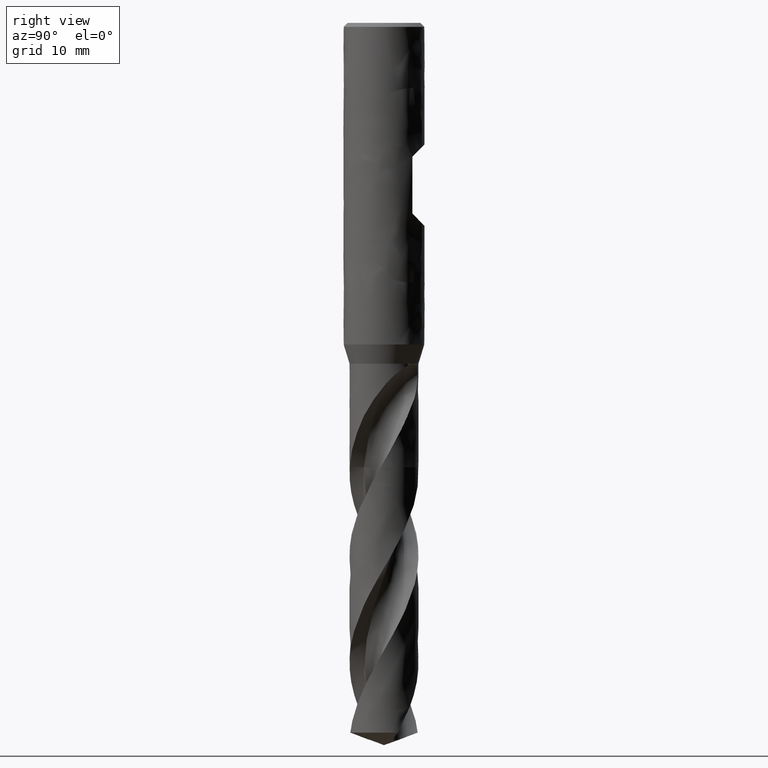
[diagram: clean part render]
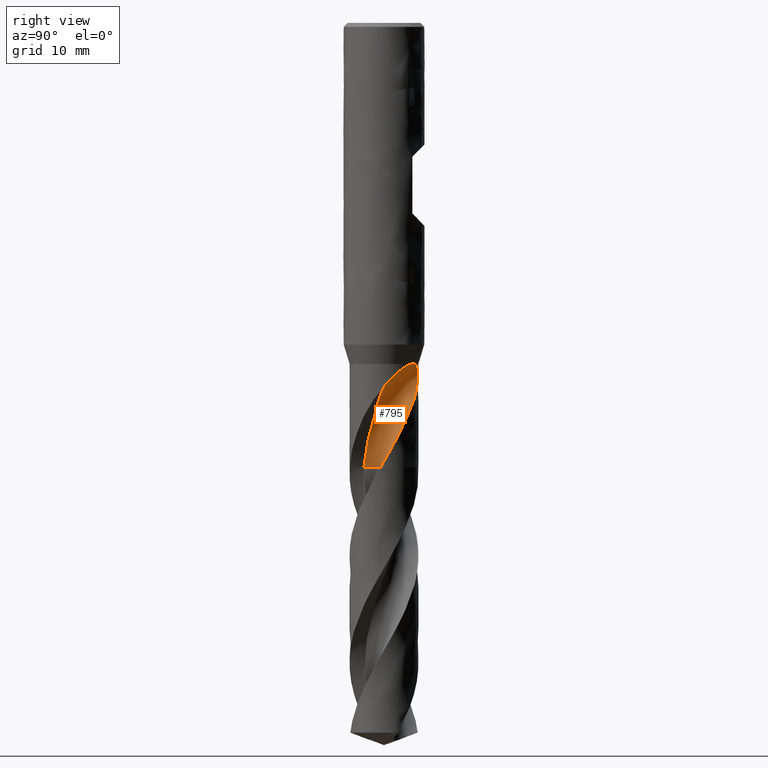
[diagram: same view with one face highlighted and labeled with its STEP entity id]
A machine part, right view. The second image highlights one B-rep face of the part: STEP entity #795.
In plain terms, the highlighted face is a freeform B-spline surface patch.
Its self-contained STEP definition (entity closure, byte-faithful):
#189 = VERTEX_POINT('', #190);
#190 = CARTESIAN_POINT('', (2.47164914475409, 3.45737624583099, -42.));
#197 = EDGE_CURVE('', #198, #189, #200, .T.);
#198 = VERTEX_POINT('', #199);
#199 = CARTESIAN_POINT('', (2.29125301185875, 3.58698681878302, -41.98));
#200 = B_SPLINE_CURVE_WITH_KNOTS('', 3, (#201, #202, #203, #204, #205, #206, #207), .UNSPECIFIED., .F., .U., (4, 3, 4), (0., 0.131760971255534, 0.223285146844681), .UNSPECIFIED.);
#201 = CARTESIAN_POINT('', (2.29125301186076, 3.58698681878174, -41.98));
#202 = CARTESIAN_POINT('', (2.32825456861981, 3.56332514633761, -41.9800699501278));
#203 = CARTESIAN_POINT('', (2.36450692344449, 3.53837278768523, -41.9826907188639));
#204 = CARTESIAN_POINT('', (2.39970857761268, 3.51252907385462, -41.987374823659));
#205 = CARTESIAN_POINT('', (2.42416044941066, 3.49457744083332, -41.9906285096759));
#206 = CARTESIAN_POINT('', (2.44815888947889, 3.47615856436713, -41.9948839416769));
#207 = CARTESIAN_POINT('', (2.47164914475409, 3.45737624583099, -42.));
#209 = EDGE_CURVE('', #210, #198, #212, .T.);
#210 = VERTEX_POINT('', #211);
#211 = CARTESIAN_POINT('', (2.28821245732914, 3.58892721472569, -41.98));
#212 = LINE('', #213, #214);
#213 = CARTESIAN_POINT('', (2.28821245732914, 3.58892721472569, -41.98));
#214 = VECTOR('', #215, 0.00360695276678507);
#215 = DIRECTION('', (0.00304055452960705, -0.00194039594266338, 0.));
#217 = EDGE_CURVE('', #210, #218, #220, .T.);
#218 = VERTEX_POINT('', #219);
#219 = CARTESIAN_POINT('', (2.11454927874783, 3.68662194261183, -42.));
#220 = B_SPLINE_CURVE_WITH_KNOTS('', 3, (#221, #222, #223, #224, #225, #226, #227), .UNSPECIFIED., .F., .U., (4, 3, 4), (0., 0.131525990545027, 0.200578461498623), .UNSPECIFIED.);
#221 = CARTESIAN_POINT('', (2.28821245733029, 3.58892721472495, -41.98));
#222 = CARTESIAN_POINT('', (2.25123311605895, 3.61247809821935, -41.9800699529928));
#223 = CARTESIAN_POINT('', (2.21333676399875, 3.63483940120322, -41.9827053410337));
#224 = CARTESIAN_POINT('', (2.17508989478605, 3.65549811932701, -41.9884075378523));
#225 = CARTESIAN_POINT('', (2.15500990288154, 3.66634415460316, -41.9914012486662));
#226 = CARTESIAN_POINT('', (2.13478967088776, 3.67674624142159, -41.9952458531201));
#227 = CARTESIAN_POINT('', (2.11454927874783, 3.68662194261184, -42.));
#611 = VERTEX_POINT('', #612);
#612 = CARTESIAN_POINT('', (0.609771048206674, -2.47031927261728, -54.75));
#618 = EDGE_CURVE('', #611, #619, #621, .T.);
#619 = VERTEX_POINT('', #620);
#620 = CARTESIAN_POINT('', (4.2450367311532, 0.205336677581351, -44.5069553871322));
#621 = (
   BOUNDED_CURVE ()
   B_SPLINE_CURVE (3, (#622, #623, #624, #625, #626, #627, #628, #629, #630, #631, #632, #633, #634, #635, #636, #637, #638), .UNSPECIFIED., .F., .U.)
   B_SPLINE_CURVE_WITH_KNOTS ((4, 1, 1, 1, 1, 1, 1, 1, 1, 1, 1, 1, 1, 1, 4), (34.3, 34.518, 35.3025, 36.087, 36.8715, 37.656, 38.4405, 39.225, 40.0095, 40.794, 41.5785, 42.363, 43.1475, 43.932, 44.5430446128678), .UNSPECIFIED.)
   CURVE ()
   GEOMETRIC_REPRESENTATION_ITEM ()
   RATIONAL_B_SPLINE_CURVE ((1., 1., 1., 1., 1., 1., 1., 1., 1., 1., 1., 1., 1., 1., 1., 1., 1.))
   REPRESENTATION_ITEM ('')
);
#622 = CARTESIAN_POINT('', (0.609771048206675, -2.47031927261728, -54.75));
#623 = CARTESIAN_POINT('', (0.634055811282545, -2.46496966776102, -54.6773333333333));
#624 = CARTESIAN_POINT('', (0.745422272728016, -2.43874789137037, -54.3431666666667));
#625 = CARTESIAN_POINT('', (0.941033418804973, -2.37880569093326, -53.7475));
#626 = CARTESIAN_POINT('', (1.18921362328058, -2.27247470419927, -52.963));
#627 = CARTESIAN_POINT('', (1.42759755652091, -2.14301329606372, -52.1785));
#628 = CARTESIAN_POINT('', (1.64302122090415, -1.97703407144944, -51.394));
#629 = CARTESIAN_POINT('', (1.82687186775797, -1.77766282427974, -50.6095));
#630 = CARTESIAN_POINT('', (1.97325649335444, -1.54985682579238, -49.825));
#631 = CARTESIAN_POINT('', (2.08060207817125, -1.30776976679265, -49.0405));
#632 = CARTESIAN_POINT('', (2.26720601182499, -1.11601597415201, -48.256));
#633 = CARTESIAN_POINT('', (2.52680930283888, -0.931086368183839, -47.4715));
#634 = CARTESIAN_POINT('', (2.87066064989402, -0.728610734314013, -46.687));
#635 = CARTESIAN_POINT('', (3.29731320745058, -0.477210773874358, -45.9025));
#636 = CARTESIAN_POINT('', (3.7633543896976, -0.171299236364999, -45.1758184623774));
#637 = CARTESIAN_POINT('', (4.09499192189252, 0.0815678368742719, -44.7106369247548));
#638 = CARTESIAN_POINT('', (4.2450367311532, 0.20533667758135, -44.5069553871322));
#795 = ADVANCED_FACE('', (#796), #1034, .T.);
#796 = FACE_OUTER_BOUND('', #797, .T.);
#797 = EDGE_LOOP('', (#798, #807, #858, #869, #978, #979, #980, #981, #1033));
#798 = ORIENTED_EDGE('', *, *, #799, .T.);
#799 = EDGE_CURVE('', #611, #800, #802, .T.);
#800 = VERTEX_POINT('', #801);
#801 = CARTESIAN_POINT('', (4.22936375687884, -0.418308751999922, -54.75));
#802 = CIRCLE('', #803, 2.55009796873264);
#803 = AXIS2_PLACEMENT_3D('', #804, #805, #806);
#804 = CARTESIAN_POINT('', (3.1468918195684, -2.72726048029877, -54.75));
#805 = DIRECTION('', (0., 0., -1.));
#806 = DIRECTION('', (-0.994911026401606, 0.100757379603199, 0.));
#807 = ORIENTED_EDGE('', *, *, #808, .F.);
#808 = EDGE_CURVE('', #809, #800, #811, .T.);
#809 = VERTEX_POINT('', #810);
#810 = CARTESIAN_POINT('', (3.73569701540675, 2.02659019268354, -50.3024607008561));
#811 = B_SPLINE_CURVE_WITH_KNOTS('', 3, (#812, #813, #814, #815, #816, #817, #818, #819, #820, #821, #822, #823, #824, #825, #826, #827, #828, #829, #830, #831, #832, #833, #834, #835, #836, #837, #838, #839, #840, #841, #842, #843, #844, #845, #846, #847, #848, #849, #850, #851, #852, #853, #854, #855, #856, #857), .UNSPECIFIED., .F., .U., (4, 3, 3, 3, 3, 3, 3, 3, 3, 3, 3, 3, 3, 3, 3, 4), (0., 0.295492436937705, 0.590953130722115, 1.03402044030218, 1.47706053005002, 1.9200506415551, 2.21544133681296, 2.51083004733054, 2.80621996671564, 3.10159368342789, 3.76547581857646, 4.06080690653621, 4.25774553308732, 4.31612959440229, 4.98245767447834, 5.11753710972845), .UNSPECIFIED.);
#812 = CARTESIAN_POINT('', (3.73569701540675, 2.02659019268354, -50.3024607008561));
#813 = CARTESIAN_POINT('', (3.7581034291317, 1.98528752913545, -50.389027414858));
#814 = CARTESIAN_POINT('', (3.7799064394322, 1.943462314432, -50.4755047712726));
#815 = CARTESIAN_POINT('', (3.80107061835899, 1.90114758876002, -50.5618951346642));
#816 = CARTESIAN_POINT('', (3.82223252373259, 1.85883740873001, -50.6482762176066));
#817 = CARTESIAN_POINT('', (3.84275747965228, 1.81603457187207, -50.7345759029241));
#818 = CARTESIAN_POINT('', (3.8626161889869, 1.77276512166061, -50.8207910721548));
#819 = CARTESIAN_POINT('', (3.89239593668845, 1.70787906644073, -50.9500777213761));
#820 = CARTESIAN_POINT('', (3.92068094870784, 1.64193528086018, -51.0791913068954));
#821 = CARTESIAN_POINT('', (3.94738053275361, 1.57501966008025, -51.2081157154047));
#822 = CARTESIAN_POINT('', (3.97407847651091, 1.50810815026028, -51.3370322034453));
#823 = CARTESIAN_POINT('', (3.99919765212538, 1.44020787140257, -51.4657763665396));
#824 = CARTESIAN_POINT('', (4.02264666283142, 1.37142765978104, -51.5943408158332));
#825 = CARTESIAN_POINT('', (4.0460930283133, 1.3026552070829, -51.7228907620934));
#826 = CARTESIAN_POINT('', (4.06787116427629, 1.23299717244265, -51.851285408889));
#827 = CARTESIAN_POINT('', (4.08789434515069, 1.16259185567674, -51.9795298418547));
#828 = CARTESIAN_POINT('', (4.10124602313661, 1.11564481345344, -52.0650446450813));
#829 = CARTESIAN_POINT('', (4.11381896006642, 1.06836123978132, -52.1505005526517));
#830 = CARTESIAN_POINT('', (4.12559087784211, 1.02078396767682, -52.2358990232494));
#831 = CARTESIAN_POINT('', (4.13736271652187, 0.973207015245665, -52.3212969200517));
#832 = CARTESIAN_POINT('', (4.14833452748659, 0.925331741506246, -52.4066431950077));
#833 = CARTESIAN_POINT('', (4.15848443459073, 0.877215599078495, -52.4919471198322));
#834 = CARTESIAN_POINT('', (4.16863438323299, 0.829099259737187, -52.5772513937598));
#835 = CARTESIAN_POINT('', (4.17796297744471, 0.780738392011166, -52.6625197677596));
#836 = CARTESIAN_POINT('', (4.18645064507395, 0.732209666939674, -52.7477720114868));
#837 = CARTESIAN_POINT('', (4.19493784713923, 0.683683603756774, -52.8330195789738));
#838 = CARTESIAN_POINT('', (4.20258442160845, 0.634987660601885, -52.9182584352753));
#839 = CARTESIAN_POINT('', (4.20937701281844, 0.586212558681317, -53.0035157476108));
#840 = CARTESIAN_POINT('', (4.22464404471916, 0.476585611620682, -53.1951401317311));
#841 = CARTESIAN_POINT('', (4.23560927237254, 0.366502088617862, -53.3868944278517));
#842 = CARTESIAN_POINT('', (4.2422704647201, 0.256205589640036, -53.5786269634426));
#843 = CARTESIAN_POINT('', (4.24523372744244, 0.207139673694003, -53.6639200830122));
#844 = CARTESIAN_POINT('', (4.24734576336505, 0.158022386874772, -53.7492174901782));
#845 = CARTESIAN_POINT('', (4.24860522517941, 0.108874425730876, -53.8345055488432));
#846 = CARTESIAN_POINT('', (4.24944508488272, 0.0761005920233132, -53.8913790505484));
#847 = CARTESIAN_POINT('', (4.24990578394153, 0.0433131311758714, -53.9482515645899));
#848 = CARTESIAN_POINT('', (4.24998697252181, 0.0105229936287436, -54.0051218118593));
#849 = CARTESIAN_POINT('', (4.25001104153829, 0.000802090042667304, -54.0219814602773));
#850 = CARTESIAN_POINT('', (4.25000175919651, -0.00891910983520778, -54.0388410184666));
#851 = CARTESIAN_POINT('', (4.24995912198796, -0.0186403173604956, -54.0557004549028));
#852 = CARTESIAN_POINT('', (4.24947251025403, -0.129586925055386, -54.2481145429028));
#853 = CARTESIAN_POINT('', (4.24463658847609, -0.240557213558418, -54.4405529575625));
#854 = CARTESIAN_POINT('', (4.23547124014188, -0.351117322172134, -54.6329718406902));
#855 = CARTESIAN_POINT('', (4.23361322137623, -0.373530300822271, -54.671979402943));
#856 = CARTESIAN_POINT('', (4.23157716059796, -0.395929852624131, -54.7109914180556));
#857 = CARTESIAN_POINT('', (4.22936375687884, -0.418308751999922, -54.75));
#858 = ORIENTED_EDGE('', *, *, #859, .T.);
#859 = EDGE_CURVE('', #809, #860, #862, .T.);
#860 = VERTEX_POINT('', #861);
#861 = CARTESIAN_POINT('', (3.07367527400149, 2.93513548409471, -48.3291116133368));
#862 = B_SPLINE_CURVE_WITH_KNOTS('', 3, (#863, #864, #865, #866, #867, #868), .UNSPECIFIED., .F., .U., (4, 1, 1, 4), (38.7475392991439, 39.225, 40.0095, 40.7208883866632), .UNSPECIFIED.);
#863 = CARTESIAN_POINT('', (3.73569701540675, 2.02659019268354, -50.3024607008561));
#864 = CARTESIAN_POINT('', (3.68110323378241, 2.10052779351626, -50.1433071339041));
#865 = CARTESIAN_POINT('', (3.52738023772015, 2.28822305870644, -49.722653566952));
#866 = CARTESIAN_POINT('', (3.25686837372841, 2.54548406870072, -49.0648705377789));
#867 = CARTESIAN_POINT('', (3.12725361087793, 2.79930395611281, -48.5662410755579));
#868 = CARTESIAN_POINT('', (3.07367527400148, 2.93513548409471, -48.3291116133368));
#869 = ORIENTED_EDGE('', *, *, #870, .T.);
#870 = EDGE_CURVE('', #860, #218, #871, .T.);
#871 = B_SPLINE_CURVE_WITH_KNOTS('', 3, (#872, #873, #874, #875, #876, #877, #878, #879, #880, #881, #882, #883, #884, #885, #886, #887, #888, #889, #890, #891, #892, #893, #894, #895, #896, #897, #898, #899, #900, #901, #902, #903, #904, #905, #906, #907, #908, #909, #910, #911, #912, #913, #914, #915, #916, #917, #918, #919, #920, #921, #922, #923, #924, #925, #926, #927, #928, #929, #930, #931, #932, #933, #934, #935, #936, #937, #938, #939, #940, #941, #942, #943, #944, #945, #946, #947, #948, #949, #950, #951, #952, #953, #954, #955, #956, #957, #958, #959, #960, #961, #962, #963, #964, #965, #966, #967, #968, #969, #970, #971, #972, #973, #974, #975, #976, #977), .UNSPECIFIED., .F., .U., (4, 3, 3, 3, 3, 3, 3, 3, 3, 3, 3, 3, 3, 3, 3, 3, 3, 3, 3, 3, 3, 3, 3, 3, 3, 3, 3, 3, 3, 3, 3, 3, 3, 3, 3, 4), (0., 0.197042957082622, 0.492563689580851, 0.787971686752015, 1.08324662707107, 1.37837697109211, 1.6733641521783, 1.96820908268526, 2.26290951648392, 2.55746285844162, 2.85188285641208, 3.14618388286756, 3.44038345697115, 3.73451569977214, 4.02861882855966, 4.32274067123198, 4.61695911621782, 4.91137574324848, 5.10802988565835, 5.30482646016912, 5.50181842633779, 5.69907506320903, 5.83065570236717, 5.88910171996631, 6.08729626761203, 6.219403730231, 6.35172603594261, 6.48427030079518, 6.61701991109814, 6.74992520323784, 6.88290247674807, 7.01584728348699, 7.14865892780782, 7.28126341183041, 7.41362329843195, 7.53443049290436), .UNSPECIFIED.);
#872 = CARTESIAN_POINT('', (3.07367527400148, 2.93513548409471, -48.3291116133368));
#873 = CARTESIAN_POINT('', (3.04882573325226, 2.96115793497818, -48.2741632352322));
#874 = CARTESIAN_POINT('', (3.02348165894011, 2.98703600245974, -48.2193676744849));
#875 = CARTESIAN_POINT('', (2.99767414622485, 3.01271467501592, -48.1646998599596));
#876 = CARTESIAN_POINT('', (2.95896860112701, 3.05122698845121, -48.082710263215));
#877 = CARTESIAN_POINT('', (2.91921503612305, 3.08929446230427, -48.0009988414424));
#878 = CARTESIAN_POINT('', (2.87853985421837, 3.126740844342, -47.9194702603734));
#879 = CARTESIAN_POINT('', (2.83788018909283, 3.16417294132402, -47.8379727808491));
#880 = CARTESIAN_POINT('', (2.79629436571116, 3.20098909096383, -47.7566471621373));
#881 = CARTESIAN_POINT('', (2.75393285488028, 3.23702854958231, -47.6753891210335));
#882 = CARTESIAN_POINT('', (2.71159042440382, 3.27305177540763, -47.5941676799516));
#883 = CARTESIAN_POINT('', (2.66846758106626, 3.30830348737016, -47.5130036059692));
#884 = CARTESIAN_POINT('', (2.62473914215167, 3.34264033896214, -47.4317861142462));
#885 = CARTESIAN_POINT('', (2.58103211707727, 3.37696037577933, -47.3506083947728));
#886 = CARTESIAN_POINT('', (2.53671656130484, 3.41036920290932, -47.2693654057589));
#887 = CARTESIAN_POINT('', (2.4919868925434, 3.44274618980179, -47.1879468663521));
#888 = CARTESIAN_POINT('', (2.44727892141754, 3.47510747114396, -47.1065678217559));
#889 = CARTESIAN_POINT('', (2.4021513552509, 3.50644236202964, -47.0250027956547));
#890 = CARTESIAN_POINT('', (2.35680713107705, 3.5366594615407, -46.9431527355271));
#891 = CARTESIAN_POINT('', (2.31148477308102, 3.56686198957142, -46.8613421456517));
#892 = CARTESIAN_POINT('', (2.26593939050238, 3.59595231873469, -46.7792352429597));
#893 = CARTESIAN_POINT('', (2.22038392784329, 3.62386467917546, -46.6967435378855));
#894 = CARTESIAN_POINT('', (2.17485079086702, 3.65176336041137, -46.6142922600956));
#895 = CARTESIAN_POINT('', (2.12930001582565, 3.67848974299635, -46.5314434173807));
#896 = CARTESIAN_POINT('', (2.08396927473327, 3.70399406883538, -46.4481099339404));
#897 = CARTESIAN_POINT('', (2.03866115926812, 3.72948566487217, -46.3648180441799));
#898 = CARTESIAN_POINT('', (1.99356430737269, 3.75376135669669, -46.2810267423143));
#899 = CARTESIAN_POINT('', (1.94892776108221, 3.77679501457029, -46.1966631539861));
#900 = CARTESIAN_POINT('', (1.90431142170916, 3.79981824513127, -46.1123377569654));
#901 = CARTESIAN_POINT('', (1.86014494990215, 3.82160579913878, -46.0274224214596));
#902 = CARTESIAN_POINT('', (1.81669366332529, 3.8421509774648, -45.9418575875056));
#903 = CARTESIAN_POINT('', (1.77325993488112, 3.86268785373591, -45.8563273292529));
#904 = CARTESIAN_POINT('', (1.73052914395327, 3.88198884493724, -45.7701258958773));
#905 = CARTESIAN_POINT('', (1.68879309413132, 3.90006126685396, -45.6832054331448));
#906 = CARTESIAN_POINT('', (1.64707143168839, 3.91812745878999, -45.5963149339006));
#907 = CARTESIAN_POINT('', (1.6063303073417, 3.93497190254064, -45.5086784572248));
#908 = CARTESIAN_POINT('', (1.56688235248435, 3.95061763443049, -45.4202696726038));
#909 = CARTESIAN_POINT('', (1.52744342579161, 3.96625978559622, -45.331881121454));
#910 = CARTESIAN_POINT('', (1.48928091962619, 3.98071027045216, -45.2426861928205));
#911 = CARTESIAN_POINT('', (1.45273970739912, 3.99400141994791, -45.1526821542434));
#912 = CARTESIAN_POINT('', (1.41620211212112, 4.00729125384935, -45.0626870245121));
#913 = CARTESIAN_POINT('', (1.38126684975213, 4.01942881968566, -44.9718385025998));
#914 = CARTESIAN_POINT('', (1.34833134275765, 4.03044694669678, -44.8801619396987));
#915 = CARTESIAN_POINT('', (1.31539374006537, 4.04146577479516, -44.7884795433858));
#916 = CARTESIAN_POINT('', (1.284434248696, 4.0513726414485, -44.6959109465117));
#917 = CARTESIAN_POINT('', (1.25590779374951, 4.06019649938267, -44.6025281700655));
#918 = CARTESIAN_POINT('', (1.22737196948342, 4.0690232554528, -44.5091147226833));
#919 = CARTESIAN_POINT('', (1.20124523532693, 4.07677465524821, -44.4148084866538));
#920 = CARTESIAN_POINT('', (1.17807177881433, 4.08346016069231, -44.3197476010525));
#921 = CARTESIAN_POINT('', (1.15488271293708, 4.09015016941335, -44.2246226835693));
#922 = CARTESIAN_POINT('', (1.13462437923115, 4.09578144955364, -44.1286334287464));
#923 = CARTESIAN_POINT('', (1.11796506414341, 4.10032365982917, -44.0320255902148));
#924 = CARTESIAN_POINT('', (1.10683755631631, 4.10335760691085, -43.9674968581656));
#925 = CARTESIAN_POINT('', (1.097308510454, 4.10590761598542, -43.902641384734));
#926 = CARTESIAN_POINT('', (1.08961720625945, 4.10794770461156, -43.8375747619278));
#927 = CARTESIAN_POINT('', (1.08192033142905, 4.10998927082726, -43.7724610128538));
#928 = CARTESIAN_POINT('', (1.07605681999711, 4.11152243396659, -43.7070780809983));
#929 = CARTESIAN_POINT('', (1.07230853057959, 4.11249977692963, -43.6415936910996));
#930 = CARTESIAN_POINT('', (1.06855651963142, 4.11347809025845, -43.5760442842992));
#931 = CARTESIAN_POINT('', (1.06692009056069, 4.11390109513901, -43.510317197102));
#932 = CARTESIAN_POINT('', (1.06773004845378, 4.1136908663181, -43.4446585404979));
#933 = CARTESIAN_POINT('', (1.06854109457462, 4.11348035504196, -43.3789116674903));
#934 = CARTESIAN_POINT('', (1.07180716820777, 4.11263530023188, -43.3131317796551));
#935 = CARTESIAN_POINT('', (1.07790336606995, 4.1110368927334, -43.2476822961875));
#936 = CARTESIAN_POINT('', (1.08196985338244, 4.10997067015341, -43.2040240193161));
#937 = CARTESIAN_POINT('', (1.08730065140208, 4.108567337971, -43.1604675559263));
#938 = CARTESIAN_POINT('', (1.09401468200477, 4.10677877119787, -43.1171611925256));
#939 = CARTESIAN_POINT('', (1.09699694712581, 4.10598431841387, -43.0979251978256));
#940 = CARTESIAN_POINT('', (1.10025308888062, 4.10511346766938, -43.0787324581172));
#941 = CARTESIAN_POINT('', (1.103793616168, 4.10416126058745, -43.0595985478849));
#942 = CARTESIAN_POINT('', (1.11579979268736, 4.10093225954309, -42.9947141153955));
#943 = CARTESIAN_POINT('', (1.13110902238569, 4.09676479905349, -42.9303610757873));
#944 = CARTESIAN_POINT('', (1.15010691755606, 4.09142445588205, -42.8673124832912));
#945 = CARTESIAN_POINT('', (1.16277004959411, 4.08786482624403, -42.8252871618316));
#946 = CARTESIAN_POINT('', (1.1770969635404, 4.08377560821206, -42.7837600484506));
#947 = CARTESIAN_POINT('', (1.19317094379929, 4.07907380404831, -42.7430332303058));
#948 = CARTESIAN_POINT('', (1.20927106477395, 4.07436435345696, -42.7022401791459));
#949 = CARTESIAN_POINT('', (1.22716012742764, 4.06902973927407, -42.6621647738929));
#950 = CARTESIAN_POINT('', (1.24686842361695, 4.06298155720488, -42.6231715898965));
#951 = CARTESIAN_POINT('', (1.26660977875629, 4.05692322983714, -42.5841129982307));
#952 = CARTESIAN_POINT('', (1.28822962918686, 4.05013232661126, -42.5460419962005));
#953 = CARTESIAN_POINT('', (1.31167276836227, 4.04252576352172, -42.5093737887217));
#954 = CARTESIAN_POINT('', (1.3351522270418, 4.03490741589269, -42.4726487726771));
#955 = CARTESIAN_POINT('', (1.36053377710715, 4.02644640501465, -42.4372228184105));
#956 = CARTESIAN_POINT('', (1.38764641037961, 4.01708071113347, -42.403529497127));
#957 = CARTESIAN_POINT('', (1.41479083993785, 4.00770403365376, -42.3697966620692));
#958 = CARTESIAN_POINT('', (1.44376390506622, 3.99738707588608, -42.3376887082393));
#959 = CARTESIAN_POINT('', (1.47426605676279, 3.98610581819865, -42.3076055191712));
#960 = CARTESIAN_POINT('', (1.50478472839357, 3.97481845059357, -42.2775060370786));
#961 = CARTESIAN_POINT('', (1.53694445790691, 3.96252356625059, -42.2493260293391));
#962 = CARTESIAN_POINT('', (1.57033592096082, 3.9492461426632, -42.2233742851626));
#963 = CARTESIAN_POINT('', (1.60371923139612, 3.93597196079572, -42.1974288771767));
#964 = CARTESIAN_POINT('', (1.63845375958337, 3.92166683129031, -42.1736155947532));
#965 = CARTESIAN_POINT('', (1.67406973040893, 3.90640378580205, -42.1521131395445));
#966 = CARTESIAN_POINT('', (1.70965002696549, 3.89115602834267, -42.1306322219873));
#967 = CARTESIAN_POINT('', (1.74623106149563, 3.87489983250716, -42.1113808093846));
#968 = CARTESIAN_POINT('', (1.7833430995543, 3.85774382110478, -42.0944029021642));
#969 = CARTESIAN_POINT('', (1.82039725006167, 3.84061456973882, -42.0774514771725));
#970 = CARTESIAN_POINT('', (1.85809461658861, 3.82253574413472, -42.0627103662113));
#971 = CARTESIAN_POINT('', (1.8960135813795, 3.80363411742304, -42.0501146229512));
#972 = CARTESIAN_POINT('', (1.93386260222342, 3.78476735596633, -42.0375421133423));
#973 = CARTESIAN_POINT('', (1.97203345348336, 3.76503097812546, -42.0270700939761));
#974 = CARTESIAN_POINT('', (2.01017691597104, 3.74455454847398, -42.0185634399479));
#975 = CARTESIAN_POINT('', (2.04499112448174, 3.7258653512971, -42.0107992673283));
#976 = CARTESIAN_POINT('', (2.07985237737555, 3.70652317168105, -42.0046544278388));
#977 = CARTESIAN_POINT('', (2.11454927874784, 3.68662194261183, -42.));
#978 = ORIENTED_EDGE('', *, *, #217, .F.);
#979 = ORIENTED_EDGE('', *, *, #209, .T.);
#980 = ORIENTED_EDGE('', *, *, #197, .T.);
#981 = ORIENTED_EDGE('', *, *, #982, .F.);
#982 = EDGE_CURVE('', #619, #189, #983, .T.);
#983 = B_SPLINE_CURVE_WITH_KNOTS('', 3, (#984, #985, #986, #987, #988, #989, #990, #991, #992, #993, #994, #995, #996, #997, #998, #999, #1000, #1001, #1002, #1003, #1004, #1005, #1006, #1007, #1008, #1009, #1010, #1011, #1012, #1013, #1014, #1015, #1016, #1017, #1018, #1019, #1020, #1021, #1022, #1023, #1024, #1025, #1026, #1027, #1028, #1029, #1030, #1031, #1032), .UNSPECIFIED., .F., .U., (4, 3, 3, 3, 3, 3, 3, 3, 3, 3, 3, 3, 3, 3, 3, 3, 4), (0., 0.449594198690998, 0.899657769809117, 1.35011366645393, 1.64893718823411, 1.94782236260052, 2.24675282565272, 2.54570911171477, 2.84466700085257, 3.14359493874636, 3.4424500201081, 3.7411717138569, 3.93948997209439, 4.13770480685612, 4.33577993709333, 4.53366753375009, 4.67396720773657), .UNSPECIFIED.);
#984 = CARTESIAN_POINT('', (4.2450367311532, 0.205336677581354, -44.5069553871322));
#985 = CARTESIAN_POINT('', (4.24036487170032, 0.30192056709333, -44.3924601287925));
#986 = CARTESIAN_POINT('', (4.23226263891475, 0.401038800265989, -44.2801320567184));
#987 = CARTESIAN_POINT('', (4.2202241563504, 0.502203215995859, -44.1702217565011));
#988 = CARTESIAN_POINT('', (4.20817310571511, 0.60347324649453, -44.0601967108877));
#989 = CARTESIAN_POINT('', (4.19216351681398, 0.706904053139245, -43.9524640857336));
#990 = CARTESIAN_POINT('', (4.17172261561068, 0.811930057580308, -43.8473067488046));
#991 = CARTESIAN_POINT('', (4.15126389584164, 0.917047614382311, -43.7420577450307));
#992 = CARTESIAN_POINT('', (4.12633926097565, 1.02389860862381, -43.6392520529361));
#993 = CARTESIAN_POINT('', (4.09651151129616, 1.13185398255167, -43.5392442765027));
#994 = CARTESIAN_POINT('', (4.07672437281624, 1.20346943985283, -43.4729010979988));
#995 = CARTESIAN_POINT('', (4.05476529960035, 1.27562566269758, -43.4077367381418));
#996 = CARTESIAN_POINT('', (4.03051953394977, 1.34811434472421, -43.3438676866869));
#997 = CARTESIAN_POINT('', (4.00626876596822, 1.42061798245009, -43.2799854579154));
#998 = CARTESIAN_POINT('', (3.9797130749996, 1.49350574198385, -43.2173535101226));
#999 = CARTESIAN_POINT('', (3.95074660973885, 1.56655712492072, -43.1561141786001));
#1000 = CARTESIAN_POINT('', (3.9217757553238, 1.63961957699522, -43.0948655677655));
#1001 = CARTESIAN_POINT('', (3.89037047895655, 1.71290325329589, -43.0349614850076));
#1002 = CARTESIAN_POINT('', (3.85643461750724, 1.78617245552937, -42.9765765044937));
#1003 = CARTESIAN_POINT('', (3.82249582451968, 1.85944798709882, -42.9181864804124));
#1004 = CARTESIAN_POINT('', (3.7859958909345, 1.93277371879519, -42.8612638715813));
#1005 = CARTESIAN_POINT('', (3.74685000058293, 2.00589508029001, -42.8060243398112));
#1006 = CARTESIAN_POINT('', (3.70770390032166, 2.07901683387922, -42.7507845118335));
#1007 = CARTESIAN_POINT('', (3.66587233898431, 2.15200745082844, -42.6971718256628));
#1008 = CARTESIAN_POINT('', (3.62128498920214, 2.22458873209842, -42.6454555568758));
#1009 = CARTESIAN_POINT('', (3.57670210642567, 2.29716274177682, -42.5937444693088));
#1010 = CARTESIAN_POINT('', (3.52931208639919, 2.36941124173244, -42.5438687998286));
#1011 = CARTESIAN_POINT('', (3.47906490885354, 2.44102588269439, -42.496169520553));
#1012 = CARTESIAN_POINT('', (3.4288299778551, 2.51262306930121, -42.4484818668353));
#1013 = CARTESIAN_POINT('', (3.37567040416641, 2.58368372089945, -42.4029034951717));
#1014 = CARTESIAN_POINT('', (3.31956737759217, 2.65385991070098, -42.3598736156264));
#1015 = CARTESIAN_POINT('', (3.26348939141129, 2.7240047788519, -42.3168629415533));
#1016 = CARTESIAN_POINT('', (3.20437763607123, 2.79338034127836, -42.2763262314415));
#1017 = CARTESIAN_POINT('', (3.14226549667044, 2.86158479665281, -42.2388402933798));
#1018 = CARTESIAN_POINT('', (3.10102988653853, 2.90686503266162, -42.2139537648806));
#1019 = CARTESIAN_POINT('', (3.05842899792983, 2.95167692896456, -42.190387310539));
#1020 = CARTESIAN_POINT('', (3.0144939679654, 2.99588486379237, -42.1683558272256));
#1021 = CARTESIAN_POINT('', (2.97058185023078, 3.04006974406979, -42.1463358333867));
#1022 = CARTESIAN_POINT('', (2.92529067318053, 3.08369727061793, -42.1258258275544));
#1023 = CARTESIAN_POINT('', (2.87867903497805, 3.12661270604113, -42.1070887401539));
#1024 = CARTESIAN_POINT('', (2.83210024929522, 3.16949789407892, -42.0883648589087));
#1025 = CARTESIAN_POINT('', (2.7841436009685, 3.21172562276278, -42.0713874926871));
#1026 = CARTESIAN_POINT('', (2.73491053342517, 3.25311610216421, -42.0564797888799));
#1027 = CARTESIAN_POINT('', (2.68572407876768, 3.29446739388575, -42.0415861993892));
#1028 = CARTESIAN_POINT('', (2.63518630250123, 3.33504659550177, -42.0287351304238));
#1029 = CARTESIAN_POINT('', (2.58346649774961, 3.37464084829859, -42.0183229933402));
#1030 = CARTESIAN_POINT('', (2.5467978440902, 3.40271264690033, -42.0109409266366));
#1031 = CARTESIAN_POINT('', (2.50949470652994, 3.43032077262097, -42.0047776322586));
#1032 = CARTESIAN_POINT('', (2.47164914475409, 3.45737624583099, -42.));
#1033 = ORIENTED_EDGE('', *, *, #618, .F.);
#1034 = (
   BOUNDED_SURFACE ()
   B_SPLINE_SURFACE (3, 2, ((#1035, #1036, #1037, #1038, #1039), (#1040, #1041, #1042, #1043, #1044), (#1045, #1046, #1047, #1048, #1049), (#1050, #1051, #1052, #1053, #1054), (#1055, #1056, #1057, #1058, #1059), (#1060, #1061, #1062, #1063, #1064), (#1065, #1066, #1067, #1068, #1069), (#1070, #1071, #1072, #1073, #1074), (#1075, #1076, #1077, #1078, #1079), (#1080, #1081, #1082, #1083, #1084), (#1085, #1086, #1087, #1088, #1089), (#1090, #1091, #1092, #1093, #1094), (#1095, #1096, #1097, #1098, #1099), (#1100, #1101, #1102, #1103, #1104), (#1105, #1106, #1107, #1108, #1109), (#1110, #1111, #1112, #1113, #1114), (#1115, #1116, #1117, #1118, #1119), (#1120, #1121, #1122, #1123, #1124), (#1125, #1126, #1127, #1128, #1129)), .UNSPECIFIED., .F., .F., .U.)
   B_SPLINE_SURFACE_WITH_KNOTS ((4, 1, 1, 1, 1, 1, 1, 1, 1, 1, 1, 1, 1, 1, 1, 1, 4), (3, 2, 3), (34.3, 34.518, 35.3025, 36.087, 36.8715, 37.656, 38.4405, 39.225, 40.0095, 40.794, 41.5785, 42.363, 43.1475, 43.932, 44.7165, 45.501, 47.07), (0., 0.5, 1.), .UNSPECIFIED.)
   GEOMETRIC_REPRESENTATION_ITEM ()
   RATIONAL_B_SPLINE_SURFACE (((1., 0.887010833178222, 1., 0.887010833178222, 1.), (1., 0.887010833178222, 1., 0.887010833178222, 1.), (1., 0.887010833178222, 1., 0.887010833178222, 1.), (1., 0.887010833178222, 1., 0.887010833178222, 1.), (1., 0.887010833178222, 1., 0.887010833178222, 1.), (1., 0.887010833178222, 1., 0.887010833178222, 1.), (1., 0.887010833178222, 1., 0.887010833178222, 1.), (1., 0.887010833178222, 1., 0.887010833178222, 1.), (1., 0.887010833178221, 1., 0.887010833178221, 1.), (1., 0.887010833178222, 1., 0.887010833178222, 1.), (1., 0.887010833178222, 1., 0.887010833178222, 1.), (1., 0.887010833178221, 1., 0.887010833178221, 1.), (1., 0.887010833178222, 1., 0.887010833178222, 1.), (1., 0.887010833178222, 1., 0.887010833178222, 1.), (1., 0.887010833178222, 1., 0.887010833178222, 1.), (1., 0.887010833178222, 1., 0.887010833178222, 1.), (1., 0.887010833178221, 1., 0.887010833178221, 1.), (1., 0.887010833178222, 1., 0.887010833178222, 1.), (1., 0.887010833178222, 1., 0.887010833178222, 1.)))
   REPRESENTATION_ITEM ('')
   SURFACE ()
);
#1035 = CARTESIAN_POINT('', (4.2560848317074, -0.431025633400303, -54.75));
#1036 = CARTESIAN_POINT('', (3.06074054072663, 0.146383436041599, -54.75));
#1037 = CARTESIAN_POINT('', (1.90213340246898, -0.501597047177214, -54.75));
#1038 = CARTESIAN_POINT('', (0.743526264211322, -1.14957753039603, -54.75));
#1039 = CARTESIAN_POINT('', (0.609771048206672, -2.47031927261728, -54.75));
#1040 = CARTESIAN_POINT('', (4.26134305502157, -0.389550218710324, -54.6773333333333));
#1041 = CARTESIAN_POINT('', (3.06006344508432, 0.176322537220664, -54.6773333333334));
#1042 = CARTESIAN_POINT('', (1.90750194252703, -0.483136832247072, -54.6773333333333));
#1043 = CARTESIAN_POINT('', (0.754940439969737, -1.14259620171481, -54.6773333333334));
#1044 = CARTESIAN_POINT('', (0.634055811282544, -2.46496966776102, -54.6773333333333));
#1045 = CARTESIAN_POINT('', (4.28278184650584, -0.198394923127536, -54.3431666666667));
#1046 = CARTESIAN_POINT('', (3.05496230020998, 0.314011597871095, -54.3431666666667));
#1047 = CARTESIAN_POINT('', (1.93097509118041, -0.397854987217703, -54.3431666666667));
#1048 = CARTESIAN_POINT('', (0.806987882150842, -1.1097215723065, -54.3431666666667));
#1049 = CARTESIAN_POINT('', (0.745422272728015, -2.43874789137037, -54.3431666666667));
#1050 = CARTESIAN_POINT('', (4.29845415976369, 0.14521156659534, -53.7475));
#1051 = CARTESIAN_POINT('', (3.02959577195145, 0.559084451808721, -53.7475));
#1052 = CARTESIAN_POINT('', (1.96278367963764, -0.242915755877894, -53.7475));
#1053 = CARTESIAN_POINT('', (0.895971587323841, -1.04491596356451, -53.7475));
#1054 = CARTESIAN_POINT('', (0.941033418804973, -2.37880569093326, -53.7475));
#1055 = CARTESIAN_POINT('', (4.27039491948669, 0.598277334031764, -52.963));
#1056 = CARTESIAN_POINT('', (2.96163250628471, 0.877056366816054, -52.963));
#1057 = CARTESIAN_POINT('', (1.98259481067996, -0.0351179552931392, -52.963));
#1058 = CARTESIAN_POINT('', (1.00355711507521, -0.947292277402333, -52.963));
#1059 = CARTESIAN_POINT('', (1.18921362328058, -2.27247470419927, -52.963));
#1060 = CARTESIAN_POINT('', (4.20017422749547, 1.04890814322726, -52.1785));
#1061 = CARTESIAN_POINT('', (2.86406067065945, 1.18882855431859, -52.1785));
#1062 = CARTESIAN_POINT('', (1.9830813273859, 0.17460345360067, -52.1785));
#1063 = CARTESIAN_POINT('', (1.10210198411234, -0.839621647117254, -52.1785));
#1064 = CARTESIAN_POINT('', (1.42759755652091, -2.14301329606372, -52.1785));
#1065 = CARTESIAN_POINT('', (4.05915340389436, 1.48382889137852, -51.394));
#1066 = CARTESIAN_POINT('', (2.71800169344273, 1.4819574131925, -51.394));
#1067 = CARTESIAN_POINT('', (1.95028169993769, 0.382276812085722, -51.394));
#1068 = CARTESIAN_POINT('', (1.18256170643265, -0.717403789021056, -51.394));
#1069 = CARTESIAN_POINT('', (1.64302122090415, -1.97703407144944, -51.394));
#1070 = CARTESIAN_POINT('', (3.84741276232325, 1.88763555373321, -50.6095));
#1071 = CARTESIAN_POINT('', (2.52514737725733, 1.74553931768754, -50.6095));
#1072 = CARTESIAN_POINT('', (1.88312553202346, 0.580899871728252, -50.6095));
#1073 = CARTESIAN_POINT('', (1.24110368678959, -0.583739574231039, -50.6095));
#1074 = CARTESIAN_POINT('', (1.82687186775797, -1.77766282427974, -50.6095));
#1075 = CARTESIAN_POINT('', (3.56946998942979, 2.24819504708636, -49.825));
#1076 = CARTESIAN_POINT('', (2.28998578017963, 1.97145872536372, -49.825));
#1077 = CARTESIAN_POINT('', (1.7827929107386, 0.764637186498407, -49.825));
#1078 = CARTESIAN_POINT('', (1.27560004129757, -0.442184352366911, -49.825));
#1079 = CARTESIAN_POINT('', (1.97325649335444, -1.54985682579238, -49.825));
#1080 = CARTESIAN_POINT('', (3.24684604218643, 2.55501546261794, -49.0405));
#1081 = CARTESIAN_POINT('', (2.02887582301951, 2.15456734014399, -49.0405));
#1082 = CARTESIAN_POINT('', (1.65830470328428, 0.927176938198229, -49.0405));
#1083 = CARTESIAN_POINT('', (1.28773358354904, -0.300213463747538, -49.0405));
#1084 = CARTESIAN_POINT('', (2.08060207817125, -1.30776976679265, -49.0405));
#1085 = CARTESIAN_POINT('', (3.04872294589514, 2.95887528375473, -48.256));
#1086 = CARTESIAN_POINT('', (1.84566247971867, 2.41963220256908, -48.256));
#1087 = CARTESIAN_POINT('', (1.59733741713626, 1.12484563746393, -48.256));
#1088 = CARTESIAN_POINT('', (1.34901235455386, -0.169940927641215, -48.256));
#1089 = CARTESIAN_POINT('', (2.26720601182499, -1.11601597415201, -48.256));
#1090 = CARTESIAN_POINT('', (2.90267243014638, 3.47446062524877, -47.4715));
#1091 = CARTESIAN_POINT('', (1.68747913840305, 2.76936971123221, -47.4715));
#1092 = CARTESIAN_POINT('', (1.56804956427347, 1.36951810832927, -47.4715));
#1093 = CARTESIAN_POINT('', (1.44861999014389, -0.0303334945736627, -47.4715));
#1094 = CARTESIAN_POINT('', (2.52680930283888, -0.931086368183839, -47.4715));
#1095 = CARTESIAN_POINT('', (2.77646702632258, 4.13335889411701, -46.687));
#1096 = CARTESIAN_POINT('', (1.52814345375584, 3.22273579179233, -46.687));
#1097 = CARTESIAN_POINT('', (1.55807324343605, 1.67785703149982, -46.687));
#1098 = CARTESIAN_POINT('', (1.58800303311626, 0.132978271207305, -46.687));
#1099 = CARTESIAN_POINT('', (2.87066064989402, -0.728610734314013, -46.687));
#1100 = CARTESIAN_POINT('', (2.61960607289986, 4.95101780816588, -45.9025));
#1101 = CARTESIAN_POINT('', (1.33024141193348, 3.78531364987625, -45.9025));
#1102 = CARTESIAN_POINT('', (1.54558116883854, 2.06050751506029, -45.9025));
#1103 = CARTESIAN_POINT('', (1.76092092574359, 0.335701380244329, -45.9025));
#1104 = CARTESIAN_POINT('', (3.29731320745058, -0.477210773874358, -45.9025));
#1105 = CARTESIAN_POINT('', (2.38112498787185, 5.93432983577315, -45.118));
#1106 = CARTESIAN_POINT('', (1.05693837250632, 4.45657674817284, -45.118));
#1107 = CARTESIAN_POINT('', (1.50792059526338, 2.52426222538351, -45.118));
#1108 = CARTESIAN_POINT('', (1.95890281802043, 0.591947702594177, -45.118));
#1109 = CARTESIAN_POINT('', (3.80043498575929, -0.146959365587264, -45.118));
#1110 = CARTESIAN_POINT('', (2.00710272200206, 7.07876111537608, -44.3335));
#1111 = CARTESIAN_POINT('', (0.670518080872238, 5.22759039755199, -44.3335));
#1112 = CARTESIAN_POINT('', (1.42027490336498, 3.07093645299827, -44.3335));
#1113 = CARTESIAN_POINT('', (2.17003172585773, 0.914282508444556, -44.3335));
#1114 = CARTESIAN_POINT('', (4.36670205973809, 0.291441458349561, -44.3335));
#1115 = CARTESIAN_POINT('', (1.25617701287829, 8.79821704742872, -43.2875));
#1116 = CARTESIAN_POINT('', (-0.0439294487807067, 6.36594651268827, -43.2875));
#1117 = CARTESIAN_POINT('', (1.20275950086047, 3.90586858126891, -43.2875));
#1118 = CARTESIAN_POINT('', (2.44944845050164, 1.44579064984955, -43.2875));
#1119 = CARTESIAN_POINT('', (5.17969772210747, 1.05597571849124, -43.2875));
#1120 = CARTESIAN_POINT('', (0.330942951019987, 10.2656021039899, -42.503));
#1121 = CARTESIAN_POINT('', (-0.855102737253551, 7.30723637609713, -42.503));
#1122 = CARTESIAN_POINT('', (0.887960737274856, 4.63883575429991, -42.503));
#1123 = CARTESIAN_POINT('', (2.63102421180326, 1.97043513250268, -42.503));
#1124 = CARTESIAN_POINT('', (5.81663017218415, 1.86773742158073, -42.503));
#1125 = CARTESIAN_POINT('', (-0.509002471570539, 11.268787031345, -41.98));
#1126 = CARTESIAN_POINT('', (-1.55658993413279, 7.92874083881177, -41.98));
#1127 = CARTESIAN_POINT('', (0.578544248957964, 5.15483563492132, -41.98));
#1128 = CARTESIAN_POINT('', (2.71367843204871, 2.38093043103086, -41.98));
#1129 = CARTESIAN_POINT('', (6.21059120634794, 2.53888330031785, -41.98));